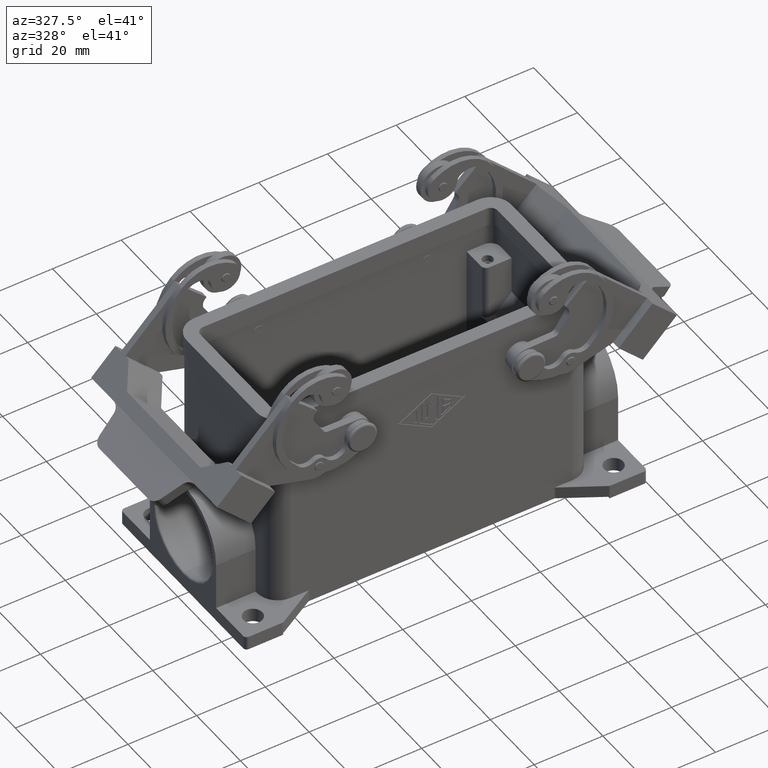
[diagram: clean part render]
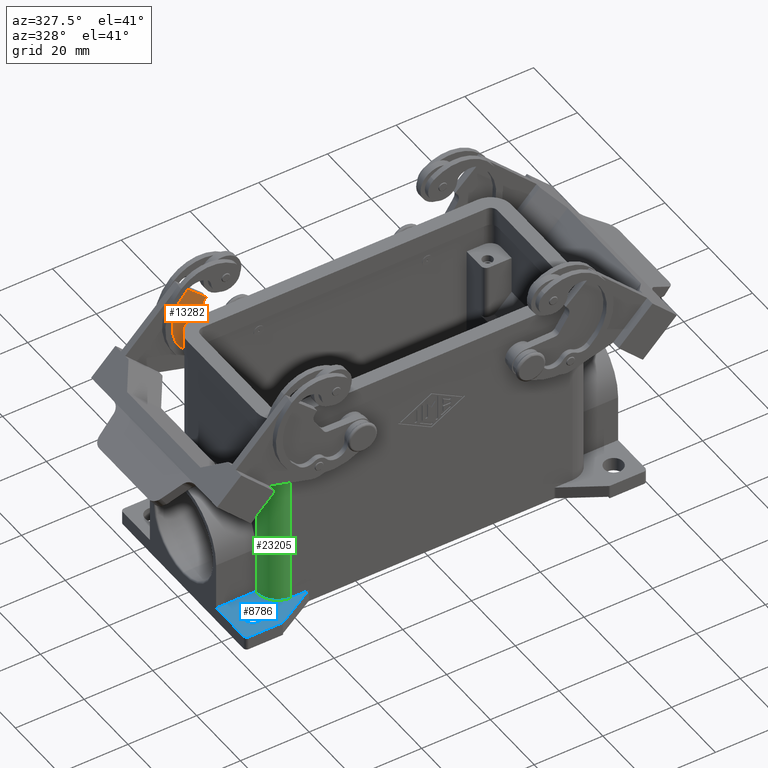
[diagram: same view with three faces highlighted in distinct colors, each labeled with its STEP entity id]
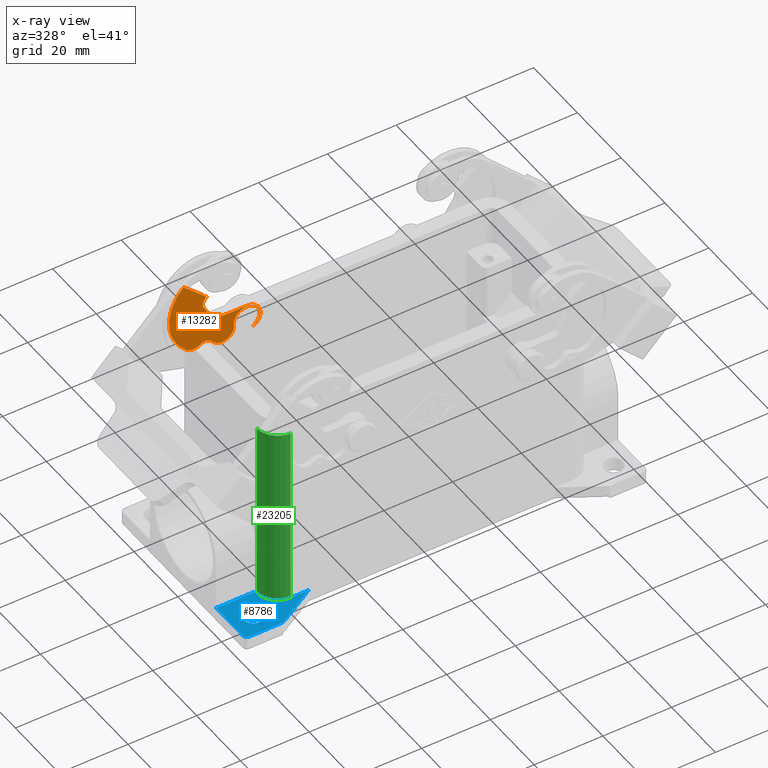
[diagram: x-ray of the same camera — body ghosted, the three highlighted faces saturated]
A machine part, auxiliary view with three faces highlighted in distinct colors.
The next image is the same camera in x-ray (body ghosted, the three faces saturated) — at least one of them is partly hidden behind the body in this view.
Their STEP definitions:

[orange] entity #13282 — the highlighted face is a freeform B-spline surface patch.
#5542=CARTESIAN_POINT('',(-20.775104665667516,24.250000000000000,19.933191352946874));
#5543=VERTEX_POINT('',#5542);
#5552=CARTESIAN_POINT('',(-28.224895334332523,24.250000000000000,19.066808647053154));
#5553=VERTEX_POINT('',#5552);
#5554=CARTESIAN_POINT('',(-24.500000000000021,24.250000000000000,19.500000000000014));
#5555=DIRECTION('',(0.0,-1.000000000000000,0.0));
#5556=DIRECTION('',(0.993305422488668,0.0,0.115517694119162));
#5557=AXIS2_PLACEMENT_3D('',#5554,#5555,#5556);
#5558=CIRCLE('',#5557,3.750000000000000);
#5559=EDGE_CURVE('',#5543,#5553,#5558,.T.);
#13146=CARTESIAN_POINT('',(-47.162058069535227,24.250000000000004,15.162496717636085));
#13147=CARTESIAN_POINT('',(-47.162058069535227,24.250000000000004,38.184557962098644));
#13148=CARTESIAN_POINT('',(-20.500000000000021,24.250000000000004,15.162496717636085));
#13149=CARTESIAN_POINT('',(-20.500000000000021,24.250000000000004,38.184557962098637));
#13150=B_SPLINE_SURFACE_WITH_KNOTS('',1,1,((#13146,#13148),(#13147,#13149)),.UNSPECIFIED.,.F.,.F.,.U.,(2,2),(2,2),(0.0,23.022061244462559),(0.0,26.662058069535206),.UNSPECIFIED.);
#13151=CARTESIAN_POINT('',(-43.061553006146895,24.250000000000000,38.061553006146880));
#13152=VERTEX_POINT('',#13151);
#13153=CARTESIAN_POINT('',(-42.934111439937503,24.250000000000000,38.184557962098637));
#13154=VERTEX_POINT('',#13153);
#13155=CARTESIAN_POINT('',(-39.526019100214157,24.250000000000000,34.526019100214150));
#13156=DIRECTION('',(0.0,1.000000000000000,0.0));
#13157=DIRECTION('',(-0.707106781186548,0.0,0.707106781186547));
#13158=AXIS2_PLACEMENT_3D('',#13155,#13156,#13157);
#13159=CIRCLE('',#13158,5.0);
#13160=EDGE_CURVE('',#13152,#13154,#13159,.T.);
#13161=ORIENTED_EDGE('',*,*,#13160,.F.);
#13162=CARTESIAN_POINT('',(-42.219054507980118,24.250000000000000,17.486346593760089));
#13163=VERTEX_POINT('',#13162);
#13164=CARTESIAN_POINT('',(-33.162058069535220,24.250000000000000,28.162058069535213));
#13165=DIRECTION('',(0.0,1.000000000000000,0.0));
#13166=DIRECTION('',(-0.646928317031778,0.0,-0.762550819698223));
#13167=AXIS2_PLACEMENT_3D('',#13164,#13165,#13166);
#13168=CIRCLE('',#13167,14.0);
#13169=EDGE_CURVE('',#13163,#13152,#13168,.T.);
#13170=ORIENTED_EDGE('',*,*,#13169,.F.);
#13171=CARTESIAN_POINT('',(-37.993093798345242,24.250000000000000,17.256707989715427));
#13172=VERTEX_POINT('',#13171);
#13173=CARTESIAN_POINT('',(-39.954805398368897,24.250000000000000,20.155274462703879));
#13174=DIRECTION('',(0.0,1.0,0.0));
#13175=DIRECTION('',(0.560489028578184,0.0,-0.828161849425270));
#13176=AXIS2_PLACEMENT_3D('',#13173,#13174,#13175);
#13177=CIRCLE('',#13176,3.500000000000000);
#13178=EDGE_CURVE('',#13172,#13163,#13177,.T.);
#13179=ORIENTED_EDGE('',*,*,#13178,.F.);
#13180=CARTESIAN_POINT('',(-34.554201679459403,24.250000000000000,16.634717262603850));
#13181=VERTEX_POINT('',#13180);
#13182=CARTESIAN_POINT('',(-36.591871226899791,24.250000000000000,15.186303366152249));
#13183=DIRECTION('',(0.0,-1.0,0.0));
#13184=DIRECTION('',(0.560489028578183,0.0,-0.828161849425271));
#13185=AXIS2_PLACEMENT_3D('',#13182,#13183,#13184);
#13186=CIRCLE('',#13185,2.500000000000000);
#13187=EDGE_CURVE('',#13181,#13172,#13186,.T.);
#13188=ORIENTED_EDGE('',*,*,#13187,.F.);
#13189=CARTESIAN_POINT('',(-31.701464313042862,24.250000000000000,18.662496717636085));
#13190=DIRECTION('',(0.0,1.000000000000000,0.0));
#13191=DIRECTION('',(0.993305422488668,0.0,0.115517694119163));
#13192=AXIS2_PLACEMENT_3D('',#13189,#13190,#13191);
#13193=CIRCLE('',#13192,3.500000000000000);
#13194=EDGE_CURVE('',#5553,#13181,#13193,.T.);
#13195=ORIENTED_EDGE('',*,*,#13194,.F.);
#13196=ORIENTED_EDGE('',*,*,#5559,.F.);
#13197=CARTESIAN_POINT('',(-21.848349570550461,24.250000000000000,16.848349570550457));
#13198=VERTEX_POINT('',#13197);
#13199=CARTESIAN_POINT('',(-24.500000000000021,24.250000000000000,19.500000000000014));
#13200=DIRECTION('',(0.0,-1.000000000000000,0.0));
#13201=DIRECTION('',(0.993305422488668,0.0,0.115517694119162));
#13202=AXIS2_PLACEMENT_3D('',#13199,#13200,#13201);
#13203=CIRCLE('',#13202,3.750000000000000);
#13204=EDGE_CURVE('',#13198,#5543,#13203,.T.);
#13205=ORIENTED_EDGE('',*,*,#13204,.F.);
#13206=CARTESIAN_POINT('',(-23.039029015013472,24.250000000000000,15.771566442432260));
#13207=VERTEX_POINT('',#13206);
#13208=CARTESIAN_POINT('',(-33.162058069535220,24.250000000000000,28.162058069535213));
#13209=DIRECTION('',(0.0,-1.0,0.0));
#13210=DIRECTION('',(-0.707106781186548,0.0,0.707106781186547));
#13211=AXIS2_PLACEMENT_3D('',#13208,#13209,#13210);
#13212=CIRCLE('',#13211,16.0);
#13213=EDGE_CURVE('',#13207,#13198,#13212,.T.);
#13214=ORIENTED_EDGE('',*,*,#13213,.F.);
#13215=CARTESIAN_POINT('',(-22.866667835852272,24.250000000000000,15.848667908617388));
#13216=VERTEX_POINT('',#13215);
#13217=CARTESIAN_POINT('',(-23.039029015013472,24.250000000000000,15.771566442432260));
#13218=DIRECTION('',(0.912833022845656,0.0,0.408333041036925));
#13219=VECTOR('',#13218,0.188820052350739);
#13220=LINE('',#13217,#13219);
#13221=EDGE_CURVE('',#13207,#13216,#13220,.T.);
#13222=ORIENTED_EDGE('',*,*,#13221,.T.);
#13223=CARTESIAN_POINT('',(-24.426508321244164,24.250000000000000,23.499324814659808));
#13224=VERTEX_POINT('',#13223);
#13225=CARTESIAN_POINT('',(-24.500000000000021,24.250000000000000,19.500000000000014));
#13226=DIRECTION('',(0.0,-1.000000000000000,0.0));
#13227=DIRECTION('',(-0.018372919688964,0.0,-0.999831203664950));
#13228=AXIS2_PLACEMENT_3D('',#13225,#13226,#13227);
#13229=CIRCLE('',#13228,4.0);
#13230=EDGE_CURVE('',#13216,#13224,#13229,.T.);
#13231=ORIENTED_EDGE('',*,*,#13230,.T.);
#13232=CARTESIAN_POINT('',(-33.012840753772032,24.250000000000000,23.657107443994960));
#13233=VERTEX_POINT('',#13232);
#13234=CARTESIAN_POINT('',(-24.426508321244164,24.250000000000000,23.499324814659808));
#13235=DIRECTION('',(-0.999831203664950,0.0,0.018372919688965));
#13236=VECTOR('',#13235,8.587782018658826);
#13237=LINE('',#13234,#13236);
#13238=EDGE_CURVE('',#13224,#13233,#13237,.T.);
#13239=ORIENTED_EDGE('',*,*,#13238,.T.);
#13240=CARTESIAN_POINT('',(-34.246783125040764,24.250000000000000,24.345304292482339));
#13241=VERTEX_POINT('',#13240);
#13242=CARTESIAN_POINT('',(-32.985281374238589,24.250000000000000,25.156854249492397));
#13243=DIRECTION('',(0.0,1.0,0.0));
#13244=DIRECTION('',(-0.018372919688965,0.0,-0.999831203664950));
#13245=AXIS2_PLACEMENT_3D('',#13242,#13243,#13244);
#13246=CIRCLE('',#13245,1.500000000000000);
#13247=EDGE_CURVE('',#13233,#13241,#13246,.T.);
#13248=ORIENTED_EDGE('',*,*,#13247,.T.);
#13249=CARTESIAN_POINT('',(-36.855551245208581,24.250000000000000,28.400465065521541));
#13250=VERTEX_POINT('',#13249);
#13251=CARTESIAN_POINT('',(-34.246783125040764,24.250000000000000,24.345304292482339));
#13252=DIRECTION('',(-0.541033304673347,0.0,0.841001167201472));
#13253=VECTOR('',#13252,4.821825380496459);
#13254=LINE('',#13251,#13253);
#13255=EDGE_CURVE('',#13241,#13250,#13254,.T.);
#13256=ORIENTED_EDGE('',*,*,#13255,.T.);
#13257=CARTESIAN_POINT('',(-36.520815280171291,24.250000000000000,31.520815280171277));
#13258=VERTEX_POINT('',#13257);
#13259=CARTESIAN_POINT('',(-34.753048327204958,24.250000000000000,29.753048327204944));
#13260=DIRECTION('',(0.0,1.0,0.0));
#13261=DIRECTION('',(-0.841001167201458,0.0,-0.541033304673368));
#13262=AXIS2_PLACEMENT_3D('',#13259,#13260,#13261);
#13263=CIRCLE('',#13262,2.500000000000000);
#13264=EDGE_CURVE('',#13250,#13258,#13263,.T.);
#13265=ORIENTED_EDGE('',*,*,#13264,.T.);
#13266=CARTESIAN_POINT('',(-36.167261889578050,24.250000000000000,31.874368670764596));
#13267=VERTEX_POINT('',#13266);
#13268=CARTESIAN_POINT('',(-36.520815280171291,24.250000000000000,31.520815280171277));
#13269=DIRECTION('',(0.707106781186469,0.0,0.707106781186626));
#13270=VECTOR('',#13269,0.500000000000009);
#13271=LINE('',#13268,#13270);
#13272=EDGE_CURVE('',#13258,#13267,#13271,.T.);
#13273=ORIENTED_EDGE('',*,*,#13272,.T.);
#13274=CARTESIAN_POINT('',(-36.167261889578050,24.250000000000000,31.874368670764596));
#13275=DIRECTION('',(-0.731353701619171,0.0,0.681998360062498));
#13276=VECTOR('',#13275,9.252499215329161);
#13277=LINE('',#13274,#13276);
#13278=EDGE_CURVE('',#13267,#13154,#13277,.T.);
#13279=ORIENTED_EDGE('',*,*,#13278,.T.);
#13280=EDGE_LOOP('',(#13161,#13170,#13179,#13188,#13195,#13196,#13205,#13214,#13222,#13231,#13239,#13248,#13256,#13265,#13273,#13279));
#13281=FACE_OUTER_BOUND('',#13280,.T.);
#13282=ADVANCED_FACE('',(#13281),#13150,.F.);

[blue] entity #8786 — the highlighted planar face has unit normal (0, 0, 1).
#7025=CARTESIAN_POINT('',(-35.799526901581473,-21.784074173710930,-29.999999999999993));
#7026=VERTEX_POINT('',#7025);
#7035=CARTESIAN_POINT('',(-36.040707856478953,-21.883974596215559,-30.000000000000004));
#7036=VERTEX_POINT('',#7035);
#7037=CARTESIAN_POINT('',(-35.540707856478953,-22.750000000000000,-29.999999999999993));
#7038=DIRECTION('',(0.0,0.0,1.0));
#7039=DIRECTION('',(-0.258819045102520,0.965925826289069,0.0));
#7040=AXIS2_PLACEMENT_3D('',#7037,#7038,#7039);
#7041=CIRCLE('',#7040,1.0);
#7042=EDGE_CURVE('',#7026,#7036,#7041,.T.);
#7069=CARTESIAN_POINT('',(-47.509130147328605,-28.465925826289073,-29.999999999999993));
#7070=VERTEX_POINT('',#7069);
#7103=CARTESIAN_POINT('',(-47.267949192431118,-28.366025403784441,-30.000000000000004));
#7104=VERTEX_POINT('',#7103);
#7111=CARTESIAN_POINT('',(-47.767949192431118,-27.500000000000004,-29.999999999999993));
#7112=DIRECTION('',(0.0,0.0,-1.000000000000000));
#7113=DIRECTION('',(0.258819045102516,-0.965925826289070,0.0));
#7114=AXIS2_PLACEMENT_3D('',#7111,#7112,#7113);
#7115=CIRCLE('',#7114,1.0);
#7116=EDGE_CURVE('',#7104,#7070,#7115,.T.);
#7296=CARTESIAN_POINT('',(-58.207106781186553,-28.207106781186546,-29.999999999999993));
#7297=VERTEX_POINT('',#7296);
#7313=CARTESIAN_POINT('',(-57.500000000000000,-28.500000000000007,-30.000000000000004));
#7314=VERTEX_POINT('',#7313);
#7321=CARTESIAN_POINT('',(-57.500000000000000,-27.500000000000004,-29.999999999999993));
#7322=DIRECTION('',(0.0,0.0,-1.0));
#7323=DIRECTION('',(-0.707106781186551,-0.707106781186544,0.0));
#7324=AXIS2_PLACEMENT_3D('',#7321,#7322,#7323);
#7325=CIRCLE('',#7324,1.0);
#7326=EDGE_CURVE('',#7314,#7297,#7325,.T.);
#7563=CARTESIAN_POINT('',(-49.749999999999986,-22.500000000000000,-30.000000000000004));
#7564=VERTEX_POINT('',#7563);
#7573=CARTESIAN_POINT('',(-55.249999999999979,-22.500000000000000,-29.999999999999993));
#7574=VERTEX_POINT('',#7573);
#7575=CARTESIAN_POINT('',(-52.499999999999993,-22.500000000000000,-29.999999999999993));
#7576=DIRECTION('',(0.0,0.0,-1.0));
#7577=DIRECTION('',(1.0,0.0,0.0));
#7578=AXIS2_PLACEMENT_3D('',#7575,#7576,#7577);
#7579=CIRCLE('',#7578,2.749999999999984);
#7580=EDGE_CURVE('',#7574,#7564,#7579,.T.);
#7680=CARTESIAN_POINT('',(-52.499999999999993,-22.500000000000000,-29.999999999999993));
#7681=DIRECTION('',(0.0,0.0,-1.0));
#7682=DIRECTION('',(1.0,0.0,0.0));
#7683=AXIS2_PLACEMENT_3D('',#7680,#7681,#7682);
#7684=CIRCLE('',#7683,2.749999999999984);
#7685=EDGE_CURVE('',#7564,#7574,#7684,.T.);
#8122=CARTESIAN_POINT('',(-58.500000000000000,-27.500000000000004,-30.000000000000004));
#8123=VERTEX_POINT('',#8122);
#8124=CARTESIAN_POINT('',(-57.500000000000000,-27.500000000000004,-29.999999999999993));
#8125=DIRECTION('',(0.0,0.0,-1.0));
#8126=DIRECTION('',(-0.707106781186551,-0.707106781186544,0.0));
#8127=AXIS2_PLACEMENT_3D('',#8124,#8125,#8126);
#8128=CIRCLE('',#8127,1.0);
#8129=EDGE_CURVE('',#7297,#8123,#8128,.T.);
#8163=CARTESIAN_POINT('',(-47.767949192431118,-28.500000000000007,-30.000000000000004));
#8164=VERTEX_POINT('',#8163);
#8171=CARTESIAN_POINT('',(-47.767949192431118,-28.500000000000007,-30.000000000000004));
#8172=DIRECTION('',(-1.0,0.0,0.0));
#8173=VECTOR('',#8172,9.732050807568882);
#8174=LINE('',#8171,#8173);
#8175=EDGE_CURVE('',#8164,#7314,#8174,.T.);
#8537=CARTESIAN_POINT('',(-47.767949192431118,-27.500000000000004,-29.999999999999993));
#8538=DIRECTION('',(0.0,0.0,-1.000000000000000));
#8539=DIRECTION('',(0.258819045102516,-0.965925826289070,0.0));
#8540=AXIS2_PLACEMENT_3D('',#8537,#8538,#8539);
#8541=CIRCLE('',#8540,1.0);
#8542=EDGE_CURVE('',#7070,#8164,#8541,.T.);
#8556=CARTESIAN_POINT('',(-35.540707856478953,-21.750000000000000,-29.999999999999993));
#8557=VERTEX_POINT('',#8556);
#8564=CARTESIAN_POINT('',(-35.540707856478953,-22.750000000000000,-29.999999999999993));
#8565=DIRECTION('',(0.0,0.0,1.0));
#8566=DIRECTION('',(-0.258819045102520,0.965925826289069,0.0));
#8567=AXIS2_PLACEMENT_3D('',#8564,#8565,#8566);
#8568=CIRCLE('',#8567,1.0);
#8569=EDGE_CURVE('',#8557,#7026,#8568,.T.);
#8582=CARTESIAN_POINT('',(-36.040707856478953,-21.883974596215559,-30.000000000000004));
#8583=DIRECTION('',(-0.866025403784438,-0.500000000000000,0.0));
#8584=VECTOR('',#8583,12.964101615137755);
#8585=LINE('',#8582,#8584);
#8586=EDGE_CURVE('',#7036,#7104,#8585,.T.);
#8633=CARTESIAN_POINT('',(-41.0,-21.750000000000004,-30.000000000000004));
#8634=VERTEX_POINT('',#8633);
#8641=CARTESIAN_POINT('',(-41.0,-21.750000000000004,-30.000000000000004));
#8642=DIRECTION('',(1.0,0.0,0.0));
#8643=VECTOR('',#8642,5.459292143521047);
#8644=LINE('',#8641,#8643);
#8645=EDGE_CURVE('',#8634,#8557,#8644,.T.);
#8735=CARTESIAN_POINT('',(-53.000000000000007,-14.250000000000004,-29.999999999999993));
#8736=DIRECTION('',(0.0,0.0,1.0));
#8737=DIRECTION('',(-1.0,0.0,0.0));
#8738=AXIS2_PLACEMENT_3D('',#8735,#8736,#8737);
#8739=PLANE('',#8738);
#8740=ORIENTED_EDGE('',*,*,#7326,.F.);
#8741=ORIENTED_EDGE('',*,*,#8175,.F.);
#8742=ORIENTED_EDGE('',*,*,#8542,.F.);
#8743=ORIENTED_EDGE('',*,*,#7116,.F.);
#8744=ORIENTED_EDGE('',*,*,#8586,.F.);
#8745=ORIENTED_EDGE('',*,*,#7042,.F.);
#8746=ORIENTED_EDGE('',*,*,#8569,.F.);
#8747=ORIENTED_EDGE('',*,*,#8645,.F.);
#8748=CARTESIAN_POINT('',(-46.999999999999993,-15.750000000000018,-30.000000000000004));
#8749=VERTEX_POINT('',#8748);
#8750=CARTESIAN_POINT('',(-41.0,-15.750000000000007,-30.000000000000004));
#8751=DIRECTION('',(0.0,0.0,1.0));
#8752=DIRECTION('',(1.0,0.0,0.0));
#8753=AXIS2_PLACEMENT_3D('',#8750,#8751,#8752);
#8754=CIRCLE('',#8753,6.000000000000001);
#8755=EDGE_CURVE('',#8749,#8634,#8754,.T.);
#8756=ORIENTED_EDGE('',*,*,#8755,.F.);
#8757=CARTESIAN_POINT('',(-46.999999999999993,-15.140000000000002,-30.000000000000004));
#8758=VERTEX_POINT('',#8757);
#8759=CARTESIAN_POINT('',(-46.999999999999993,-15.140000000000002,-30.000000000000004));
#8760=DIRECTION('',(0.0,-1.0,0.0));
#8761=VECTOR('',#8760,0.610000000000015);
#8762=LINE('',#8759,#8761);
#8763=EDGE_CURVE('',#8758,#8749,#8762,.T.);
#8764=ORIENTED_EDGE('',*,*,#8763,.F.);
#8765=CARTESIAN_POINT('',(-58.500000000000007,-15.140000000000002,-30.000000000000004));
#8766=VERTEX_POINT('',#8765);
#8767=CARTESIAN_POINT('',(-58.500000000000007,-15.140000000000002,-30.000000000000004));
#8768=DIRECTION('',(1.0,0.0,0.0));
#8769=VECTOR('',#8768,11.500000000000014);
#8770=LINE('',#8767,#8769);
#8771=EDGE_CURVE('',#8766,#8758,#8770,.T.);
#8772=ORIENTED_EDGE('',*,*,#8771,.F.);
#8773=CARTESIAN_POINT('',(-58.500000000000000,-27.500000000000004,-30.000000000000004));
#8774=DIRECTION('',(0.0,1.0,0.0));
#8775=VECTOR('',#8774,12.360000000000001);
#8776=LINE('',#8773,#8775);
#8777=EDGE_CURVE('',#8123,#8766,#8776,.T.);
#8778=ORIENTED_EDGE('',*,*,#8777,.F.);
#8779=ORIENTED_EDGE('',*,*,#8129,.F.);
#8780=EDGE_LOOP('',(#8740,#8741,#8742,#8743,#8744,#8745,#8746,#8747,#8756,#8764,#8772,#8778,#8779));
#8781=FACE_OUTER_BOUND('',#8780,.T.);
#8782=ORIENTED_EDGE('',*,*,#7685,.T.);
#8783=ORIENTED_EDGE('',*,*,#7580,.T.);
#8784=EDGE_LOOP('',(#8782,#8783));
#8785=FACE_BOUND('',#8784,.T.);
#8786=ADVANCED_FACE('',(#8781,#8785),#8739,.T.);

[green] entity #23205 — the highlighted cylindrical surface (edge-blend (fillet) strip) has radius 6 mm, axis along (0, 0, 1).
#8625=CARTESIAN_POINT('',(-40.999999999999986,-21.750000000000000,23.500000000000000));
#8626=VERTEX_POINT('',#8625);
#8633=CARTESIAN_POINT('',(-41.0,-21.750000000000004,-30.000000000000004));
#8634=VERTEX_POINT('',#8633);
#8635=CARTESIAN_POINT('',(-40.999999999999986,-21.750000000000000,23.500000000000000));
#8636=DIRECTION('',(0.0,0.0,-1.0));
#8637=VECTOR('',#8636,53.500000000000000);
#8638=LINE('',#8635,#8637);
#8639=EDGE_CURVE('',#8626,#8634,#8638,.T.);
#8748=CARTESIAN_POINT('',(-46.999999999999993,-15.750000000000018,-30.000000000000004));
#8749=VERTEX_POINT('',#8748);
#8750=CARTESIAN_POINT('',(-41.0,-15.750000000000007,-30.000000000000004));
#8751=DIRECTION('',(0.0,0.0,1.0));
#8752=DIRECTION('',(1.0,0.0,0.0));
#8753=AXIS2_PLACEMENT_3D('',#8750,#8751,#8752);
#8754=CIRCLE('',#8753,6.000000000000001);
#8755=EDGE_CURVE('',#8749,#8634,#8754,.T.);
#9476=CARTESIAN_POINT('',(-46.999999999999993,-15.750000000000007,23.500000000000000));
#9477=VERTEX_POINT('',#9476);
#9478=CARTESIAN_POINT('',(-46.999999999999993,-15.750000000000007,23.500000000000000));
#9479=DIRECTION('',(0.0,0.0,-1.0));
#9480=VECTOR('',#9479,53.500000000000000);
#9481=LINE('',#9478,#9480);
#9482=EDGE_CURVE('',#9477,#8749,#9481,.T.);
#22565=CARTESIAN_POINT('',(-41.0,-15.750000000000007,23.500000000000000));
#22566=DIRECTION('',(0.0,0.0,-1.0));
#22567=DIRECTION('',(1.0,0.0,0.0));
#22568=AXIS2_PLACEMENT_3D('',#22565,#22566,#22567);
#22569=CIRCLE('',#22568,6.000000000000001);
#22570=EDGE_CURVE('',#8626,#9477,#22569,.T.);
#23194=CARTESIAN_POINT('',(-41.0,-15.750000000000007,1.500000000000000));
#23195=DIRECTION('',(0.0,0.0,1.0));
#23196=DIRECTION('',(1.0,0.0,0.0));
#23197=AXIS2_PLACEMENT_3D('',#23194,#23195,#23196);
#23198=CYLINDRICAL_SURFACE('',#23197,6.000000000000001);
#23199=ORIENTED_EDGE('',*,*,#8755,.T.);
#23200=ORIENTED_EDGE('',*,*,#8639,.F.);
#23201=ORIENTED_EDGE('',*,*,#22570,.T.);
#23202=ORIENTED_EDGE('',*,*,#9482,.T.);
#23203=EDGE_LOOP('',(#23199,#23200,#23201,#23202));
#23204=FACE_OUTER_BOUND('',#23203,.T.);
#23205=ADVANCED_FACE('',(#23204),#23198,.T.);